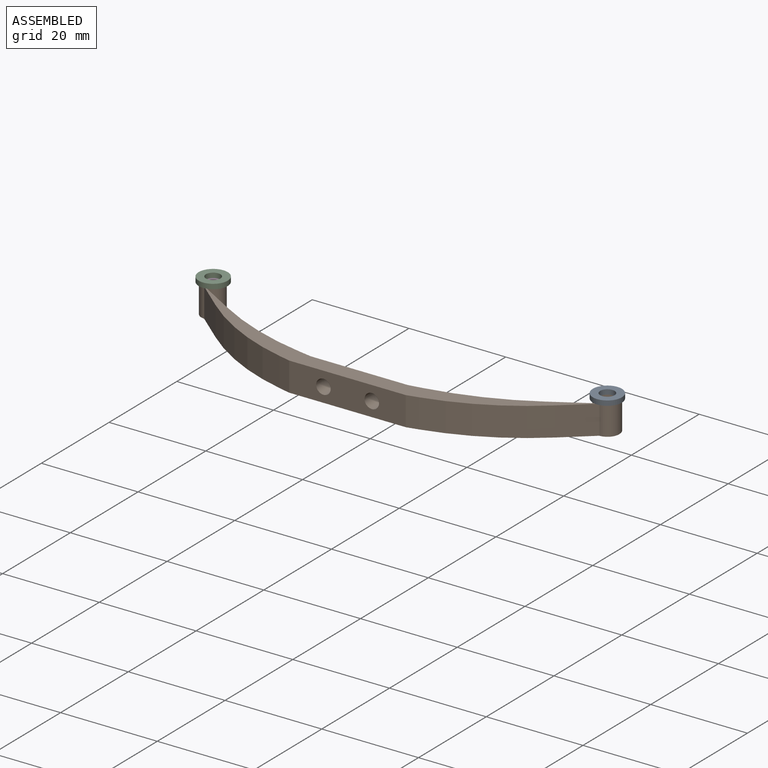
[diagram: assembled view]
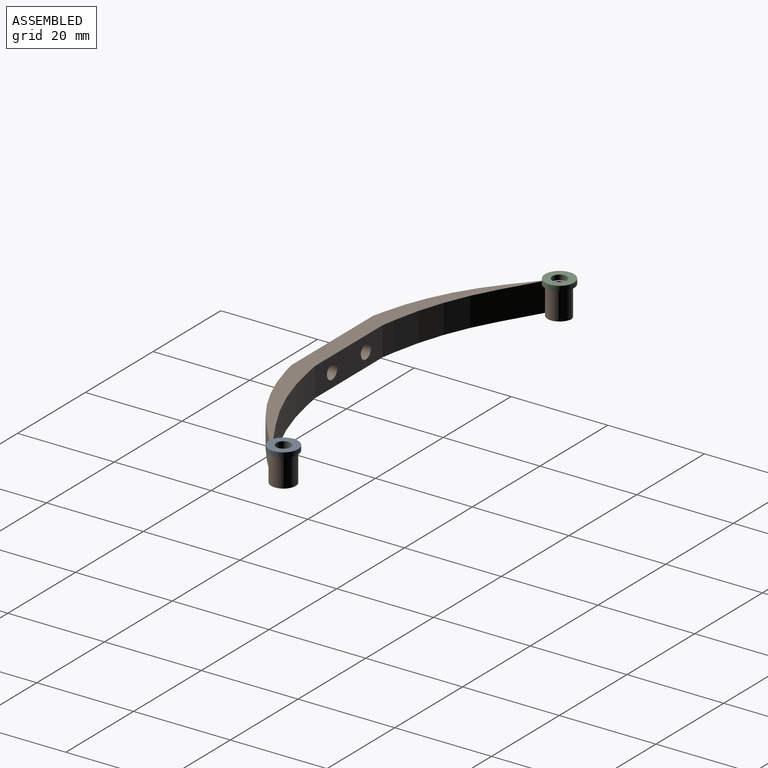
[diagram: assembled view, second angle]
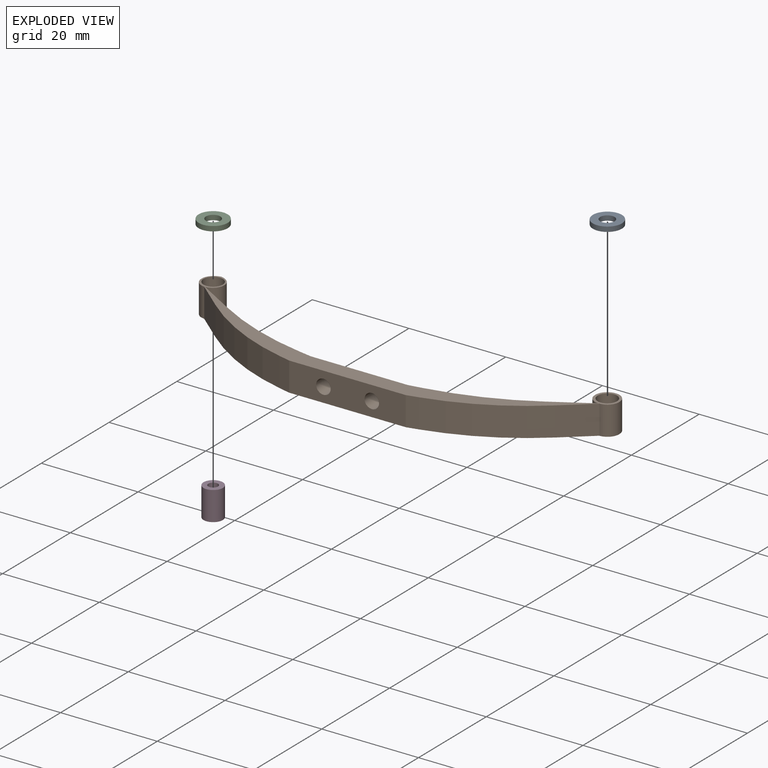
[diagram: exploded view]
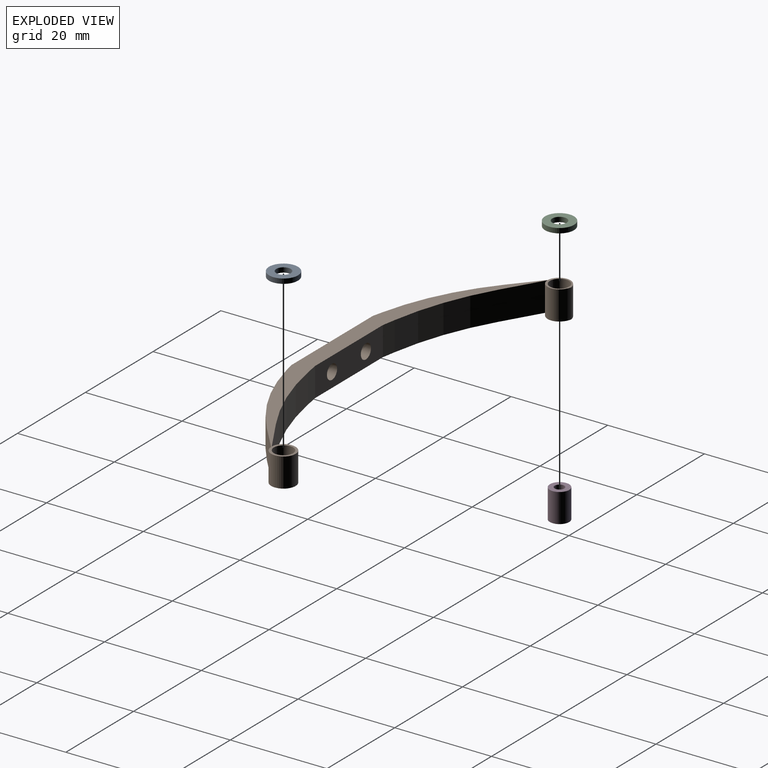
[diagram: exploded view, second angle]
ASSEMBLY  parts=4 mates=3
PART A: 4 faces, bbox 6x6x1 mm
  f0: cylinder r=1.5mm len=3mm, axis (0,0,-1), area 9.4mm2, adj f2,f3
  f1: cylinder r=3mm len=6mm, axis (0,0,-1), area 18.8mm2, adj f2,f3
  f2: plane 6x6mm, normal (0,0,1), area 21.2mm2, adj f0,f1
  f3: plane 6x6mm, normal (0,0,-1), area 21.2mm2, adj f0,f1
PART B: 30 faces, bbox 86.4x21x6 mm
  f0: plane 6x2.37mm, normal (0.23,-0.97,0), area 14.6mm2, adj f2,f21,f24,f29
  f1: plane 6x2.32mm, normal (-0.23,-0.97,0), area 14.3mm2, adj f2,f21,f25,f28
  f2: plane 86.35x21.01mm, normal (0,0,-1), area 248.7mm2, adj f0,f1,f5,f6,f7,f8,f9,f10
  f3: cylinder r=1.5mm len=3.5mm, axis (0,1,0), area 33mm2, adj f13,f28
  f4: cylinder r=1.5mm len=3.5mm, axis (0,1,0), area 33mm2, adj f13,f28
  f5: plane 6x5.76mm, normal (0.65,-0.76,0), area 45.4mm2, adj f2,f6,f21,f24
  f6: cylinder r=2.4mm len=6mm, axis (0,0,-1), area 22.6mm2, adj f2,f5,f7,f21
  f7: plane 6x0.1mm, normal (1,0,0), area 0.6mm2, adj f2,f6,f8,f21
  f8: cylinder r=2.5mm len=6mm, axis (0,0,-1), area 47.1mm2, adj f2,f7,f9,f21
  f9: plane 6x0.1mm, normal (-1,0,0), area 0.6mm2, adj f2,f8,f10,f21
  f10: cylinder r=2.4mm len=6mm, axis (0,0,-1), area 22.6mm2, adj f2,f9,f11,f21
  f11: plane 7.79x6mm, normal (-0.51,0.86,0), area 54.2mm2, adj f2,f10,f21,f27
  f12: plane 6x2.79mm, normal (-0.17,0.98,0), area 17mm2, adj f2,f13,f21,f27
  f13: plane 20x6mm, normal (0,1,0), area 105.9mm2, adj f2,f3,f4,f12,f14,f21
  f14: plane 6x2.79mm, normal (0.17,0.98,0), area 17mm2, adj f2,f13,f21,f26
  f15: plane 7.79x6mm, normal (0.51,0.86,0), area 54.2mm2, adj f2,f16,f21,f26
  f16: cylinder r=2.4mm len=6mm, axis (0,0,-1), area 32.1mm2, adj f2,f15,f17,f21
  f17: cylinder r=3mm len=6mm, axis (0,0,-1), area 12.3mm2, adj f2,f16,f18,f21
  f18: cylinder r=3mm len=6mm, axis (0,0,-1), area 12.3mm2, adj f2,f17,f19,f21
  f19: cylinder r=2.4mm len=6mm, axis (0,0,-1), area 32.1mm2, adj f2,f18,f20,f21
  f20: plane 6x5.76mm, normal (-0.65,-0.76,0), area 45.4mm2, adj f2,f19,f21,f25
  f21: plane 86.35x21.01mm, normal (0,0,1), area 248.7mm2, adj f0,f1,f5,f6,f7,f8,f9,f10
  f22: cylinder r=2mm len=6mm, axis (0,0,-1), area 75.4mm2, adj f2,f21
  f23: cylinder r=2mm len=6mm, axis (0,0,-1), area 75.4mm2, adj f2,f21
  f24: cylinder r=50mm len=20.7mm, axis (0,0,-1), area 140.6mm2, adj f0,f2,f5,f21
  f25: cylinder r=50mm len=20.7mm, axis (0,0,-1), area 140.6mm2, adj f1,f2,f20,f21
  f26: cylinder r=60mm len=20.07mm, axis (0,0,1), area 129.1mm2, adj f2,f14,f15,f21
  f27: cylinder r=60mm len=20.07mm, axis (0,0,1), area 129.1mm2, adj f2,f11,f12,f21
  f28: plane 24.1x6mm, normal (0,-1,0), area 130.4mm2, adj f1,f2,f3,f4,f21,f29
  f29: plane 6x0.01mm, normal (-1,0,0), area 0.1mm2, adj f0,f2,f21,f28
PART C: same geometry as A
PART D: 4 faces, bbox 4x4x6 mm
  f0: cylinder r=2mm len=6mm, axis (0,0,1), area 75.4mm2, adj f1,f3
  f1: plane 4x4mm, normal (0,0,-1), area 9.4mm2, adj f0,f2
  f2: cylinder r=1mm len=6mm, axis (0,0,1), area 37.7mm2, adj f1,f3
  f3: plane 4x4mm, normal (0,0,1), area 9.4mm2, adj f0,f2
PLACE A rot(axis=(1,0,0),180deg) t=(39.42,16.6,3.19)mm
PLACE B t=(3.42,4.1,-3.81)mm fixed
PLACE C rot(axis=(0,0,1),107.8deg) t=(-42.08,16.6,2.19)mm
PLACE D rot(axis=(-0.59,-0.81,0),180deg) t=(-42.08,16.6,2.19)mm
MATE fastened B.f8 <-> A.f0  axis (0,0,1) through (39.42,16.6,2.19)mm
MATE revolute B.f23 <-> D.f0  axis (0,0,1) through (-42.08,16.6,2.19)mm
MATE fastened D.f0 <-> C.f0  axis (0,0,1) through (-42.08,16.6,2.19)mm
